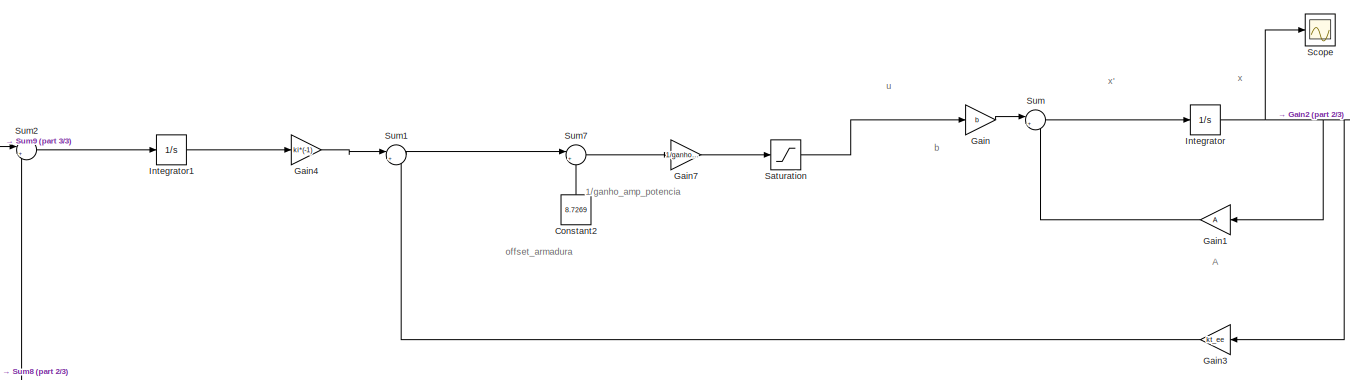
[diagram: root canvas - part 1/3, top center region]
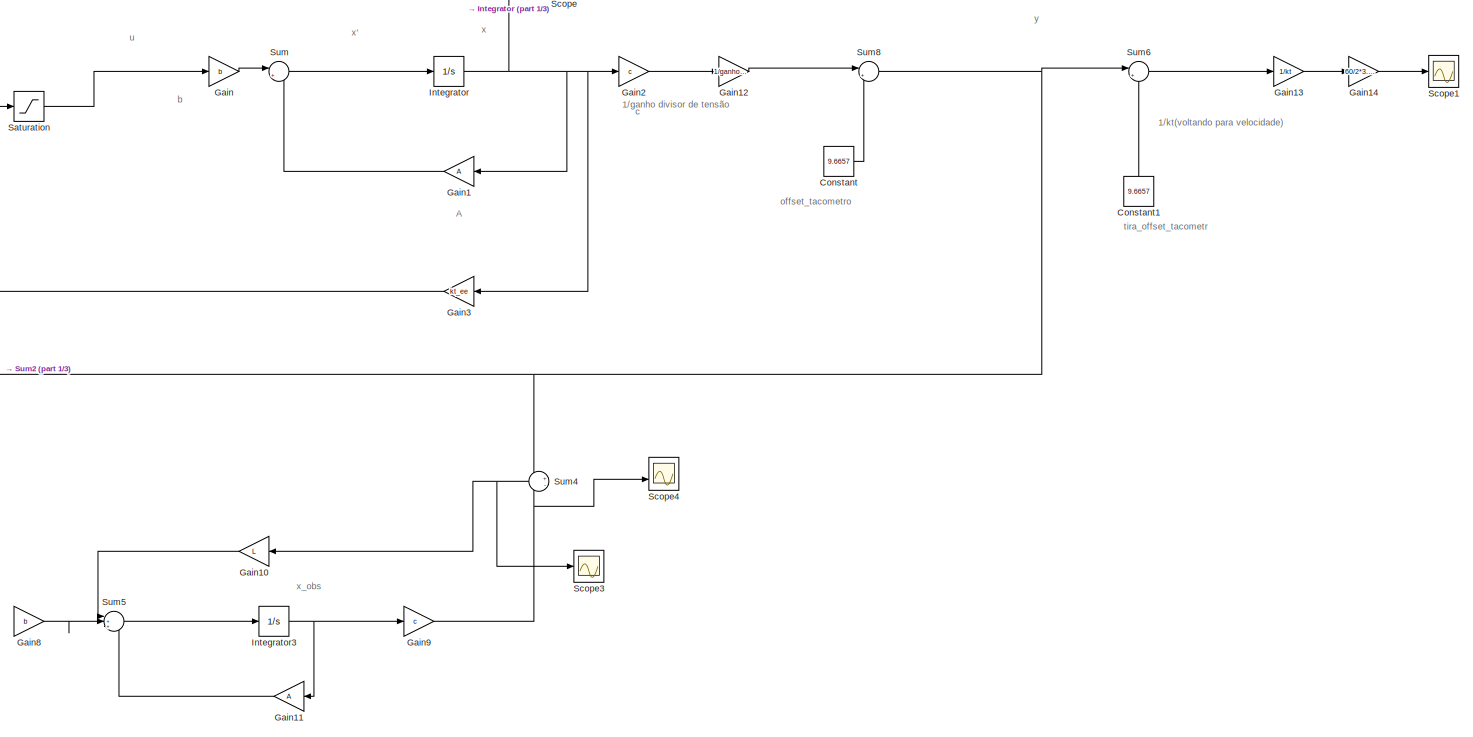
[diagram: root canvas - part 2/3, right side, full height]
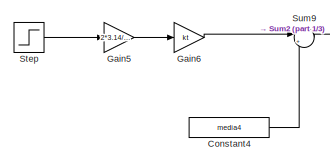
[diagram: root canvas - part 3/3, top left region]
MODEL slx_2336859e38cf
KIND model
CONFIG AbsTol = auto
CONFIG EnableMultiTasking = off
CONFIG FixedStep = auto
CONFIG MaxStep = auto
CONFIG MinStep = auto
CONFIG RelTol = 1e-3
CONFIG SampleTimeConstraint = Unconstrained
CONFIG SolverName = VariableStepAuto
CONFIG StartTime = 0.0
CONFIG StopTime = 5
BLOCK [Constant] Constant
  Value = 9.6657
BLOCK [Constant] Constant1
  NameLocation = right
  Value = 9.6657
BLOCK [Constant] Constant2
  NameLocation = right
  Value = 8.7269
BLOCK [Constant] Constant4
  Value = media4
BLOCK [Gain] Gain
  Gain = b
  Multiplication = Matrix(K*u) (u vector)
BLOCK [Gain] Gain1
  Gain = A
  Multiplication = Matrix(K*u) (u vector)
  NameLocation = top
BLOCK [Gain] Gain10
  Gain = L
  Multiplication = Matrix(K*u)
  NameLocation = top
BLOCK [Gain] Gain11
  Gain = A
  Multiplication = Matrix(K*u) (u vector)
  NameLocation = top
BLOCK [Gain] Gain12
  Gain = 1/ganho_dt
BLOCK [Gain] Gain13
  Gain = 1/kt
BLOCK [Gain] Gain14
  Gain = 60/2*3.14
BLOCK [Gain] Gain2
  Gain = c
  Multiplication = Matrix(K*u) (u vector)
BLOCK [Gain] Gain3
  Gain = kt_ee
  Multiplication = Matrix(K*u) (u vector)
  NameLocation = top
BLOCK [Gain] Gain4
  Gain = ki*(-1)
BLOCK [Gain] Gain5
  Gain = 2*3.14/60
BLOCK [Gain] Gain6
  Gain = kt
BLOCK [Gain] Gain7
  Gain = 1/ganho_amppot
BLOCK [Gain] Gain8
  Gain = b
  Multiplication = Matrix(K*u) (u vector)
BLOCK [Gain] Gain9
  Gain = c
  Multiplication = Matrix(K*u) (u vector)
BLOCK [Integrator] Integrator
BLOCK [Integrator] Integrator1
BLOCK [Integrator] Integrator3
BLOCK [Saturate] Saturation
BLOCK [Scope] Scope
  Floating = off
  NumInputPorts = 1
  ScopeSpecificationString = Simulink.scopes.TimeScopeBlockCfg('CurrentConfiguration', extmgr.ConfigurationSet(extmgr.Configuration('Core','General UI',true),extmgr.Configuration('Core','Source UI',true),extmgr.Configuration('Sources','WiredSimulink',true),extmgr.Configuration('Visuals','Time Domain',true,'SerializedDisplays',{struct('MinYLimReal','-0.00263','MaxYLimReal','0.00062','YLabelReal','','MinYLimMag','0.00000','MaxY...<+1362ch>
BLOCK [Scope] Scope1
  Floating = off
  NumInputPorts = 1
  ScopeSpecificationString = Simulink.scopes.TimeScopeBlockCfg('CurrentConfiguration', extmgr.ConfigurationSet(extmgr.Configuration('Core','General UI',true),extmgr.Configuration('Core','Source UI',true),extmgr.Configuration('Sources','WiredSimulink',true,'DataLoggingVariableName','ScopeData1'),extmgr.Configuration('Visuals','Time Domain',true,'SerializedDisplays',{struct('MinYLimReal','-0.13707','MaxYLimReal','1.23363','YLab...<+1734ch>
BLOCK [Scope] Scope3
  Floating = off
  NumInputPorts = 1
  ScopeSpecificationString = Simulink.scopes.TimeScopeBlockCfg('CurrentConfiguration', extmgr.ConfigurationSet(extmgr.Configuration('Core','General UI',true),extmgr.Configuration('Core','Source UI',true),extmgr.Configuration('Sources','WiredSimulink',true,'DataLoggingVariableName','ScopeData2'),extmgr.Configuration('Visuals','Time Domain',true,'SerializedDisplays',{struct('MinYLimReal','-0.00133','MaxYLimReal','0.00015','YLab...<+1363ch>
BLOCK [Scope] Scope4
  Floating = off
  NumInputPorts = 2
  ScopeSpecificationString = Simulink.scopes.TimeScopeBlockCfg('CurrentConfiguration', extmgr.ConfigurationSet(extmgr.Configuration('Core','General UI',true),extmgr.Configuration('Core','Source UI',true),extmgr.Configuration('Sources','WiredSimulink',true,'DataLoggingVariableName','ScopeData1'),extmgr.Configuration('Visuals','Time Domain',true,'SerializedDisplays',{struct('MinYLimReal','-0.12512','MaxYLimReal','1.1261','YLabe...<+1458ch>
BLOCK [Step] Step
  SampleTime = 0
BLOCK [Sum] Sum
  Inputs = |++
BLOCK [Sum] Sum1
  Inputs = |+-
BLOCK [Sum] Sum2
  Inputs = |+-
BLOCK [Sum] Sum4
  Inputs = +-
  NameLocation = top
BLOCK [Sum] Sum5
  Inputs = |+++
BLOCK [Sum] Sum6
  Inputs = |++
BLOCK [Sum] Sum7
  Inputs = |++
BLOCK [Sum] Sum8
  Inputs = |+-
BLOCK [Sum] Sum9
  Inputs = |+-
ANNOTATION (root): 1/ganho divisor de tensão
ANNOTATION (root): 1/ganho_amp_potencia
ANNOTATION (root): 1/kt(voltando para velocidade)
ANNOTATION (root): A
ANNOTATION (root): c
ANNOTATION (root): x '
ANNOTATION (root): x
ANNOTATION (root): y
ANNOTATION (root): b
ANNOTATION (root): u
ANNOTATION (root): offset_armadura
ANNOTATION (root): offset_tacometro
ANNOTATION (root): tira_offset_tacometr
ANNOTATION (root): x_obs
LINE Constant1:1 -> Sum6:2
LINE Constant2:1 -> Sum7:2
LINE Constant4:1 -> Sum9:2
LINE Constant:1 -> Sum8:2
LINE Gain10:1 -> Sum5:1
LINE Gain11:1 -> Sum5:3
LINE Gain12:1 -> Sum8:1
LINE Gain13:1 -> Gain14:1
LINE Gain14:1 -> Scope1:1
LINE Gain1:1 -> Sum:2
LINE Gain2:1 -> Gain12:1
LINE Gain3:1 -> Sum1:2
LINE Gain4:1 -> Sum1:1
LINE Gain5:1 -> Gain6:1
LINE Gain6:1 -> Sum9:1
LINE Gain7:1 -> Saturation:1
LINE Gain8:1 -> Sum5:2
NET Gain9:1 -> Scope4:2, Sum4:2
LINE Gain:1 -> Sum:1
LINE Integrator1:1 -> Gain4:1
NET Integrator3:1 -> Gain11:1, Gain9:1
NET Integrator:1 -> Gain1:1, Gain2:1, Gain3:1, Scope:1
LINE Saturation:1 -> Gain:1
LINE Step:1 -> Gain5:1
LINE Sum1:1 -> Sum7:1
LINE Sum2:1 -> Integrator1:1
NET Sum4:1 -> Gain10:1, Scope3:1
LINE Sum5:1 -> Integrator3:1
LINE Sum6:1 -> Gain13:1
LINE Sum7:1 -> Gain7:1
NET Sum8:1 -> Sum2:2, Sum4:1, Sum6:1
LINE Sum9:1 -> Sum2:1
LINE Sum:1 -> Integrator:1
note: NET lines group one-source signal fan-out (src -> all destinations, sorted); 1:1 wires keep LINE
